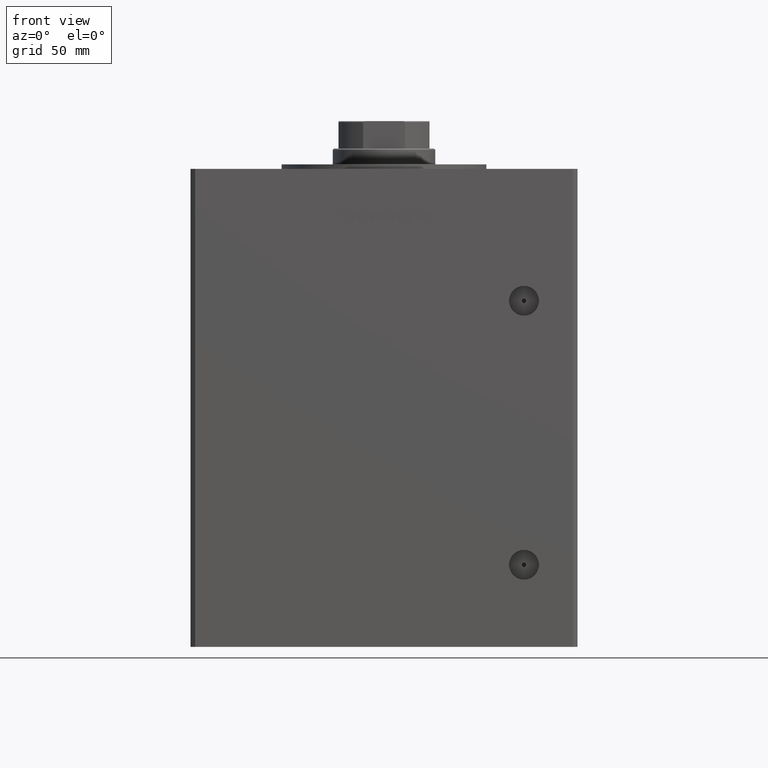
[diagram: clean part render]
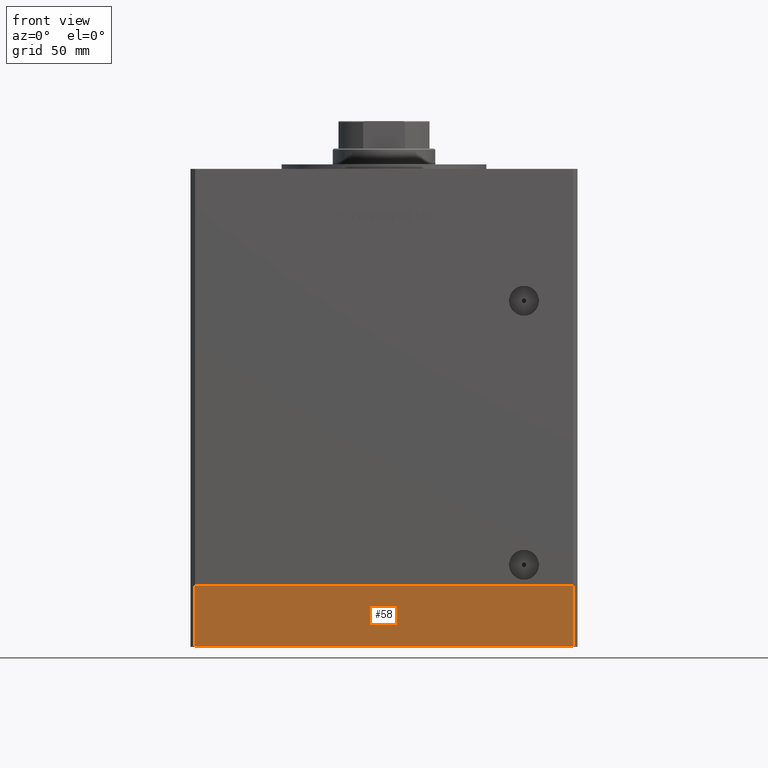
[diagram: same view with one face highlighted and labeled with its STEP entity id]
A machine part, front view. The second image highlights one B-rep face of the part: STEP entity #58.
In plain terms, the highlighted planar face has unit normal (0, -1, -0).
Its self-contained STEP definition (entity closure, byte-faithful):
#58 = ADVANCED_FACE ( 'NONE', ( #17395 ), #41099, .T. ) ;
#489 = ORIENTED_EDGE ( 'NONE', *, *, #44098, .T. ) ;
#1503 = CARTESIAN_POINT ( 'NONE',  ( -83.00000000000001421, -72.50000000000001421, -27.00000000000000000 ) ) ;
#2135 = AXIS2_PLACEMENT_3D ( 'NONE', #41362, #29014, #13163 ) ;
#4399 = ORIENTED_EDGE ( 'NONE', *, *, #26733, .F. ) ;
#4937 = ORIENTED_EDGE ( 'NONE', *, *, #51534, .F. ) ;
#5170 = VERTEX_POINT ( 'NONE', #12564 ) ;
#5228 = VECTOR ( 'NONE', #12812, 1000.000000000000000 ) ;
#5455 = DIRECTION ( 'NONE',  ( 1.000000000000000000, 0.000000000000000000, 0.000000000000000000 ) ) ;
#9148 = DIRECTION ( 'NONE',  ( 0.000000000000000000, 0.000000000000000000, 1.000000000000000000 ) ) ;
#11140 = CARTESIAN_POINT ( 'NONE',  ( 83.00000000000001421, -72.50000000000001421, -27.00000000000000000 ) ) ;
#12564 = CARTESIAN_POINT ( 'NONE',  ( 83.00000000000001421, -72.50000000000001421, 0.000000000000000000 ) ) ;
#12812 = DIRECTION ( 'NONE',  ( 1.000000000000000000, 0.000000000000000000, 0.000000000000000000 ) ) ;
#13054 = VERTEX_POINT ( 'NONE', #50733 ) ;
#13163 = DIRECTION ( 'NONE',  ( 0.000000000000000000, -0.000000000000000000, -1.000000000000000000 ) ) ;
#13734 = VECTOR ( 'NONE', #37081, 1000.000000000000000 ) ;
#13873 = CARTESIAN_POINT ( 'NONE',  ( -83.00000000000001421, -72.50000000000001421, -27.00000000000000000 ) ) ;
#17395 = FACE_OUTER_BOUND ( 'NONE', #51003, .T. ) ;
#17588 = LINE ( 'NONE', #1503, #24490 ) ;
#18630 = VERTEX_POINT ( 'NONE', #44818 ) ;
#22739 = VERTEX_POINT ( 'NONE', #11140 ) ;
#24490 = VECTOR ( 'NONE', #5455, 1000.000000000000000 ) ;
#26733 = EDGE_CURVE ( 'NONE', #18630, #13054, #29724, .T. ) ;
#29014 = DIRECTION ( 'NONE',  ( 0.000000000000000000, -1.000000000000000000, 0.000000000000000000 ) ) ;
#29724 = LINE ( 'NONE', #13873, #13734 ) ;
#33904 = CARTESIAN_POINT ( 'NONE',  ( -83.00000000000001421, -72.50000000000001421, 0.000000000000000000 ) ) ;
#34393 = EDGE_CURVE ( 'NONE', #22739, #5170, #49995, .T. ) ;
#36715 = VECTOR ( 'NONE', #9148, 1000.000000000000000 ) ;
#37081 = DIRECTION ( 'NONE',  ( 0.000000000000000000, 0.000000000000000000, 1.000000000000000000 ) ) ;
#37287 = ORIENTED_EDGE ( 'NONE', *, *, #34393, .T. ) ;
#41099 = PLANE ( 'NONE',  #2135 ) ;
#41362 = CARTESIAN_POINT ( 'NONE',  ( -83.00000000000001421, -72.50000000000001421, -27.00000000000000000 ) ) ;
#44098 = EDGE_CURVE ( 'NONE', #18630, #22739, #17588, .T. ) ;
#44818 = CARTESIAN_POINT ( 'NONE',  ( -83.00000000000001421, -72.50000000000001421, -27.00000000000000000 ) ) ;
#45252 = CARTESIAN_POINT ( 'NONE',  ( 83.00000000000001421, -72.50000000000001421, -27.00000000000000000 ) ) ;
#49442 = LINE ( 'NONE', #33904, #5228 ) ;
#49995 = LINE ( 'NONE', #45252, #36715 ) ;
#50733 = CARTESIAN_POINT ( 'NONE',  ( -83.00000000000001421, -72.50000000000001421, 0.000000000000000000 ) ) ;
#51003 = EDGE_LOOP ( 'NONE', ( #4937, #4399, #489, #37287 ) ) ;
#51534 = EDGE_CURVE ( 'NONE', #13054, #5170, #49442, .T. ) ;